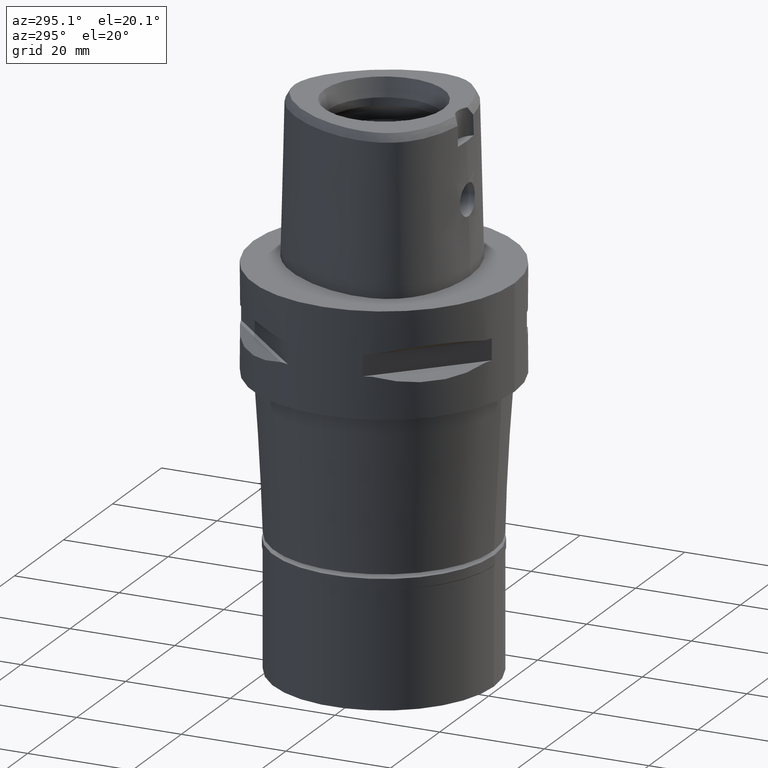
[diagram: clean part render]
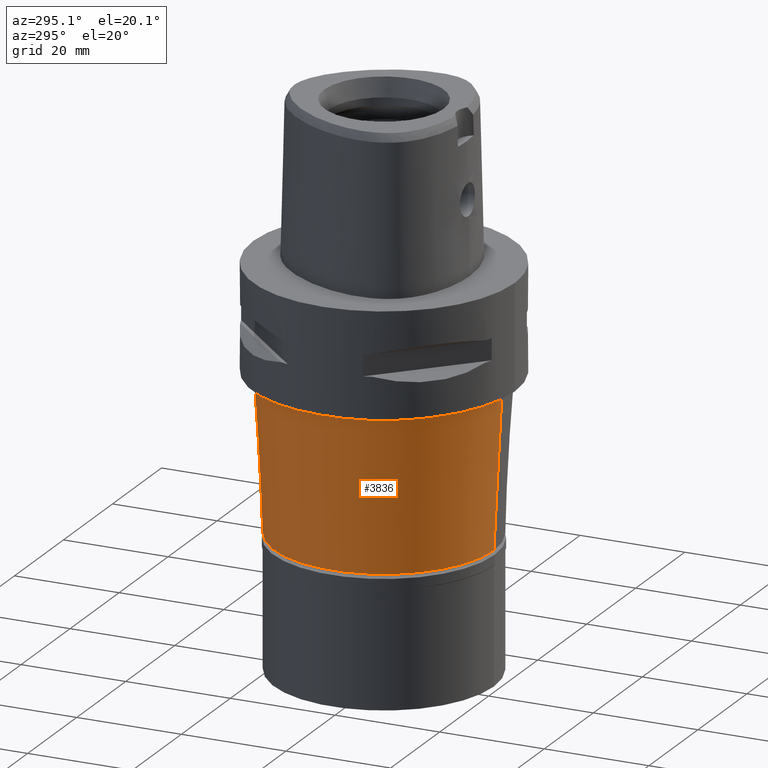
[diagram: same view with one face highlighted and labeled with its STEP entity id]
A machine part, auxiliary view. The second image highlights one B-rep face of the part: STEP entity #3836.
In plain terms, the highlighted conical surface has half-angle 3 deg.
Its self-contained STEP definition (entity closure, byte-faithful):
#25 = ORIENTED_EDGE ( 'NONE', *, *, #2355, .T. ) ;
#135 = DIRECTION ( 'NONE',  ( 0.0000000000000000000, 1.000000000000000000, 0.0000000000000000000 ) ) ;
#211 = FACE_OUTER_BOUND ( 'NONE', #754, .T. ) ;
#548 = LINE ( 'NONE', #1235, #928 ) ;
#570 = DIRECTION ( 'NONE',  ( 0.0000000000000000000, -0.05233595624294858778, -0.9986295347545736112 ) ) ;
#754 = EDGE_LOOP ( 'NONE', ( #1689, #1739, #3301, #25 ) ) ;
#818 = DIRECTION ( 'NONE',  ( 0.0000000000000000000, 1.000000000000000000, 0.0000000000000000000 ) ) ;
#928 = VECTOR ( 'NONE', #570, 1000.000000000000114 ) ;
#1019 = CARTESIAN_POINT ( 'NONE',  ( 0.0000000000000000000, -22.51458482127999972, -21.00000000000000000 ) ) ;
#1235 = CARTESIAN_POINT ( 'NONE',  ( 0.0000000000000000000, 22.51458482127999972, -21.00000000000000000 ) ) ;
#1314 = VERTEX_POINT ( 'NONE', #2326 ) ;
#1390 = AXIS2_PLACEMENT_3D ( 'NONE', #1627, #3606, #135 ) ;
#1589 = CARTESIAN_POINT ( 'NONE',  ( 0.0000000000000000000, -21.00000000000000000, -49.89999999999999858 ) ) ;
#1627 = CARTESIAN_POINT ( 'NONE',  ( 0.0000000000000000000, 0.0000000000000000000, -35.45000000000000284 ) ) ;
#1689 = ORIENTED_EDGE ( 'NONE', *, *, #4503, .T. ) ;
#1739 = ORIENTED_EDGE ( 'NONE', *, *, #3447, .F. ) ;
#1993 = VERTEX_POINT ( 'NONE', #1589 ) ;
#2258 = CARTESIAN_POINT ( 'NONE',  ( 0.0000000000000000000, -22.51458482127999972, -21.00000000000000000 ) ) ;
#2326 = CARTESIAN_POINT ( 'NONE',  ( 0.0000000000000000000, 22.51458482127999972, -21.00000000000000000 ) ) ;
#2355 = EDGE_CURVE ( 'NONE', #1314, #2845, #548, .T. ) ;
#2357 = CARTESIAN_POINT ( 'NONE',  ( 0.0000000000000000000, 21.00000000000000000, -49.89999999999999858 ) ) ;
#2375 = AXIS2_PLACEMENT_3D ( 'NONE', #4707, #2428, #818 ) ;
#2383 = DIRECTION ( 'NONE',  ( 0.0000000000000000000, 0.0000000000000000000, -1.000000000000000000 ) ) ;
#2428 = DIRECTION ( 'NONE',  ( 0.0000000000000000000, 0.0000000000000000000, 1.000000000000000000 ) ) ;
#2436 = VECTOR ( 'NONE', #3780, 1000.000000000000114 ) ;
#2712 = VERTEX_POINT ( 'NONE', #1019 ) ;
#2808 = CARTESIAN_POINT ( 'NONE',  ( 0.0000000000000000000, 0.0000000000000000000, -21.00000000000000000 ) ) ;
#2845 = VERTEX_POINT ( 'NONE', #2357 ) ;
#2852 = CIRCLE ( 'NONE', #4138, 22.51458482127999972 ) ;
#3301 = ORIENTED_EDGE ( 'NONE', *, *, #4441, .T. ) ;
#3447 = EDGE_CURVE ( 'NONE', #2712, #1993, #4517, .T. ) ;
#3606 = DIRECTION ( 'NONE',  ( 0.0000000000000000000, 0.0000000000000000000, 1.000000000000000000 ) ) ;
#3780 = DIRECTION ( 'NONE',  ( 0.0000000000000000000, 0.05233595624294858778, -0.9986295347545736112 ) ) ;
#3836 = ADVANCED_FACE ( 'NONE', ( #211 ), #4745, .T. ) ;
#3927 = DIRECTION ( 'NONE',  ( 0.0000000000000000000, -1.000000000000000000, 0.0000000000000000000 ) ) ;
#4138 = AXIS2_PLACEMENT_3D ( 'NONE', #2808, #2383, #3927 ) ;
#4441 = EDGE_CURVE ( 'NONE', #2712, #1314, #2852, .T. ) ;
#4503 = EDGE_CURVE ( 'NONE', #2845, #1993, #4692, .T. ) ;
#4517 = LINE ( 'NONE', #2258, #2436 ) ;
#4692 = CIRCLE ( 'NONE', #2375, 21.00000000000000000 ) ;
#4707 = CARTESIAN_POINT ( 'NONE',  ( 0.0000000000000000000, 0.0000000000000000000, -49.89999999999999858 ) ) ;
#4745 = CONICAL_SURFACE ( 'NONE', #1390, 21.75729241063999808, 0.05235987755982005748 ) ;